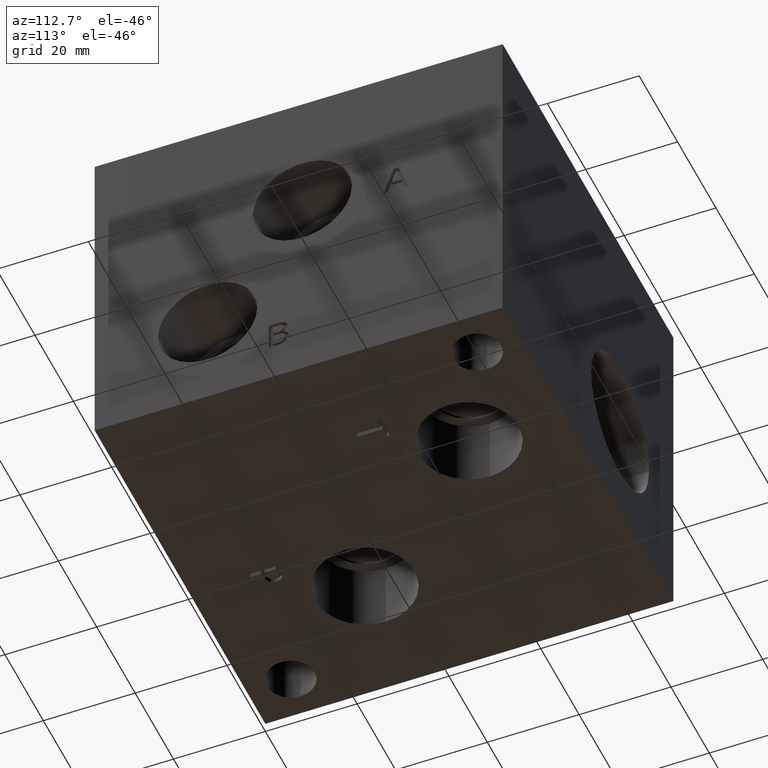
[diagram: clean part render]
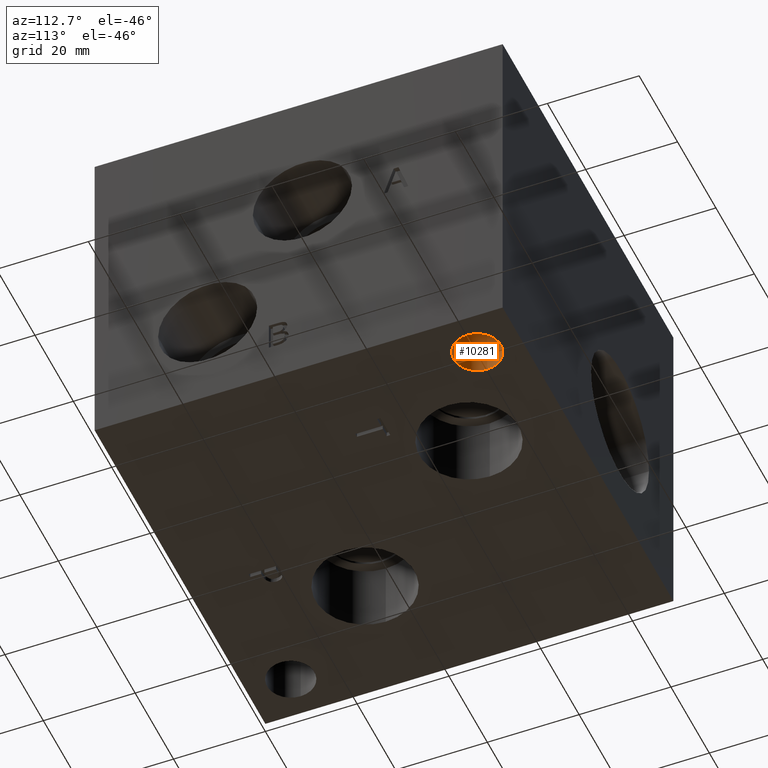
[diagram: same view with one face highlighted and labeled with its STEP entity id]
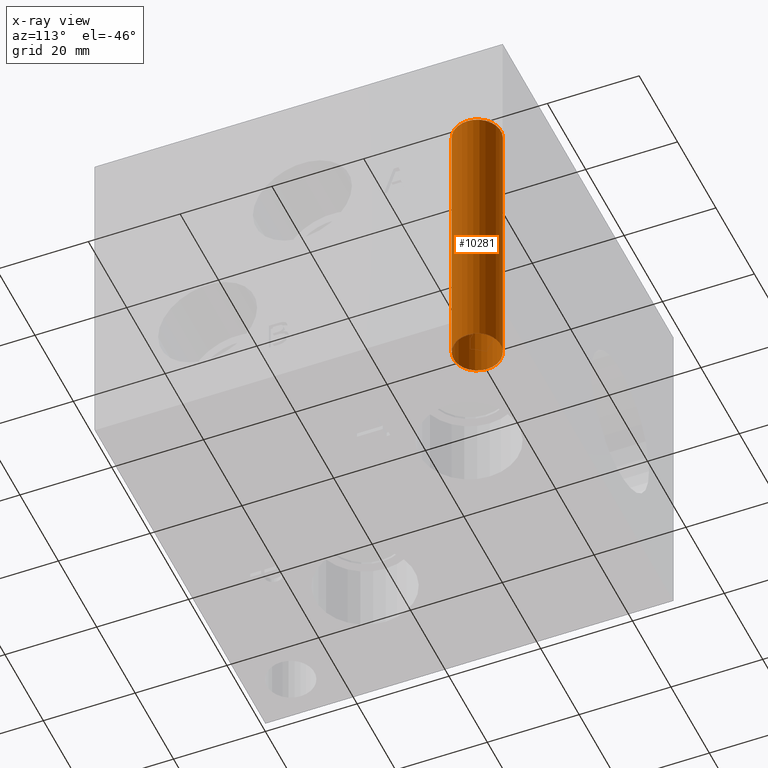
[diagram: x-ray of the same camera — body ghosted, the highlighted face saturated]
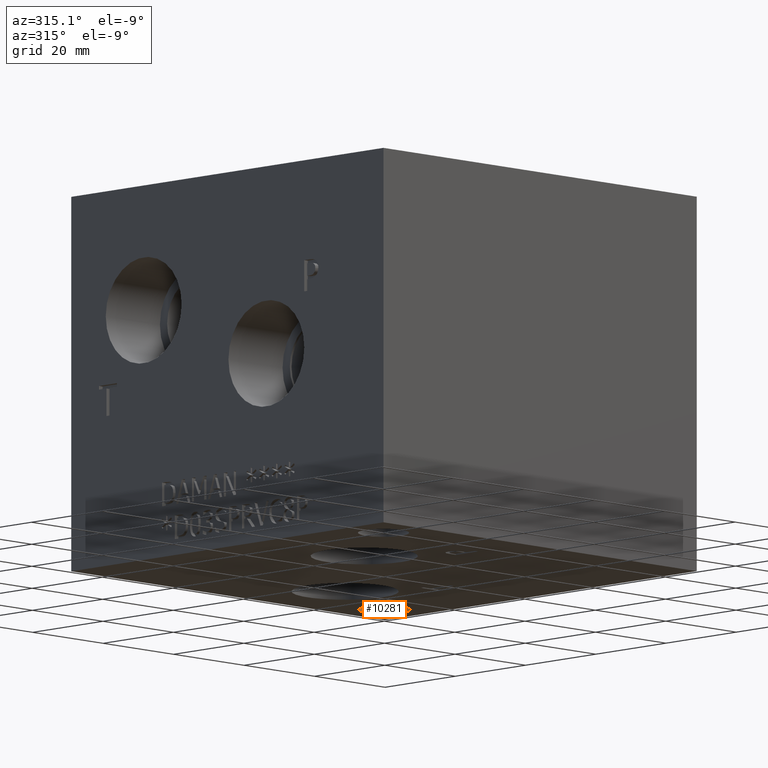
[diagram: same view with one face highlighted and labeled with its STEP entity id]
A machine part, auxiliary view. The second image highlights one B-rep face of the part: STEP entity #10281.
The next image is the same camera in x-ray: the body ghosted, the highlighted face saturated — about 0% of this face is hidden behind the body in this view.
A second angle (auxiliary view) of the same face is appended — the face is thin or edge-on in the first view.
In plain terms, the highlighted cylindrical surface (bore or boss wall) has radius 5.1562 mm, axis along (0, 0, 1).
Its self-contained STEP definition (entity closure, byte-faithful):
#36=CYLINDRICAL_SURFACE('',#10753,5.1562);
#76=CIRCLE('',#10342,5.1562);
#156=CIRCLE('',#10749,5.1562);
#1089=FACE_OUTER_BOUND('',#1672,.T.);
#1672=EDGE_LOOP('',(#9019,#9020,#9021,#9022));
#2678=LINE('',#17544,#3658);
#3658=VECTOR('',#12643,5.1562);
#4024=VERTEX_POINT('',#13059);
#4889=VERTEX_POINT('',#17535);
#5007=EDGE_CURVE('',#4024,#4024,#76,.T.);
#6289=EDGE_CURVE('',#4889,#4889,#156,.T.);
#6293=EDGE_CURVE('',#4889,#4024,#2678,.T.);
#9019=ORIENTED_EDGE('',*,*,#6289,.T.);
#9020=ORIENTED_EDGE('',*,*,#6293,.T.);
#9021=ORIENTED_EDGE('',*,*,#5007,.F.);
#9022=ORIENTED_EDGE('',*,*,#6293,.F.);
#10281=ADVANCED_FACE('',(#1089),#36,.F.);
#10342=AXIS2_PLACEMENT_3D('',#13060,#10902,#10903);
#10749=AXIS2_PLACEMENT_3D('',#17536,#12632,#12633);
#10753=AXIS2_PLACEMENT_3D('',#17543,#12641,#12642);
#10902=DIRECTION('center_axis',(0.,0.,1.));
#10903=DIRECTION('ref_axis',(1.,0.,0.));
#12632=DIRECTION('center_axis',(0.,0.,1.));
#12633=DIRECTION('ref_axis',(1.,0.,0.));
#12641=DIRECTION('center_axis',(0.,0.,1.));
#12642=DIRECTION('ref_axis',(1.,0.,0.));
#12643=DIRECTION('',(0.,0.,-1.));
#13059=CARTESIAN_POINT('',(74.2188,79.375,0.));
#13060=CARTESIAN_POINT('Origin',(79.375,79.375,0.));
#17535=CARTESIAN_POINT('',(74.2188,79.375,61.9252));
#17536=CARTESIAN_POINT('Origin',(79.375,79.375,61.9252));
#17543=CARTESIAN_POINT('Origin',(79.375,79.375,-70.8131286654359));
#17544=CARTESIAN_POINT('',(74.2188,79.375,-70.8131286654359));